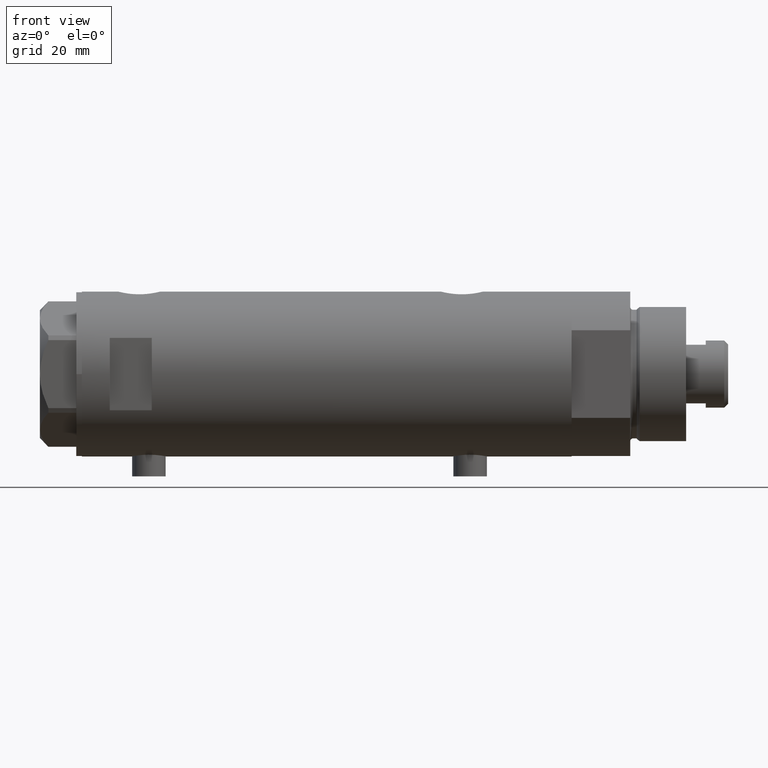
[diagram: clean part render]
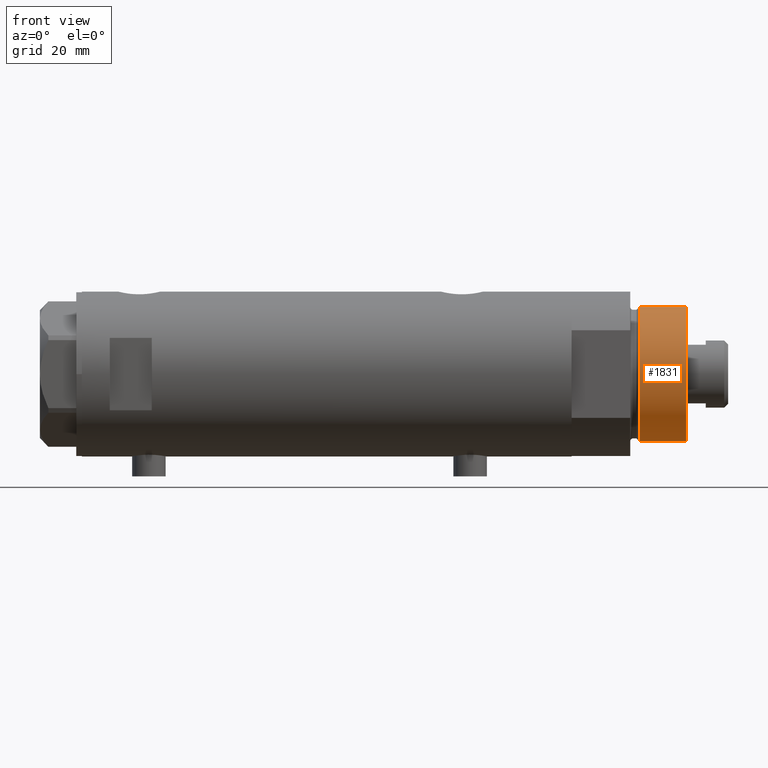
[diagram: same view with one face highlighted and labeled with its STEP entity id]
A machine part, front view. The second image highlights one B-rep face of the part: STEP entity #1831.
In plain terms, the highlighted cylindrical surface (partial cylindrical patch) has radius 24 mm, axis along (-1, -0, 0).
Its self-contained STEP definition (entity closure, byte-faithful):
#359 = EDGE_CURVE ( 'NONE', #992, #3082, #1311, .T. ) ;
#437 = ORIENTED_EDGE ( 'NONE', *, *, #1793, .F. ) ;
#447 = EDGE_CURVE ( 'NONE', #992, #1453, #1495, .T. ) ;
#886 = DIRECTION ( 'NONE',  ( -0.000000000000000000, -0.000000000000000000, -1.000000000000000000 ) ) ;
#956 = VERTEX_POINT ( 'NONE', #1099 ) ;
#992 = VERTEX_POINT ( 'NONE', #2160 ) ;
#1099 = CARTESIAN_POINT ( 'NONE',  ( 24.00000000000000355, 2.939152317953648289E-15, 24.37384048104054557 ) ) ;
#1178 = EDGE_LOOP ( 'NONE', ( #437, #4081, #1217, #2325 ) ) ;
#1180 = CARTESIAN_POINT ( 'NONE',  ( 24.00000000000000355, 2.939152317953648289E-15, 41.00000000000000000 ) ) ;
#1217 = ORIENTED_EDGE ( 'NONE', *, *, #359, .T. ) ;
#1221 = CARTESIAN_POINT ( 'NONE',  ( 0.000000000000000000, 0.000000000000000000, 41.00000000000000000 ) ) ;
#1311 = LINE ( 'NONE', #4023, #4305 ) ;
#1421 = FACE_OUTER_BOUND ( 'NONE', #1178, .T. ) ;
#1449 = LINE ( 'NONE', #1180, #2949 ) ;
#1453 = VERTEX_POINT ( 'NONE', #2882 ) ;
#1495 = CIRCLE ( 'NONE', #2059, 24.00000000000000355 ) ;
#1537 = CYLINDRICAL_SURFACE ( 'NONE', #4246, 24.00000000000000355 ) ;
#1648 = AXIS2_PLACEMENT_3D ( 'NONE', #2953, #4331, #3042 ) ;
#1654 = DIRECTION ( 'NONE',  ( 0.000000000000000000, 0.000000000000000000, 1.000000000000000000 ) ) ;
#1793 = EDGE_CURVE ( 'NONE', #1453, #956, #1449, .T. ) ;
#1831 = ADVANCED_FACE ( 'NONE', ( #1421 ), #1537, .T. ) ;
#2059 = AXIS2_PLACEMENT_3D ( 'NONE', #3011, #1654, #4387 ) ;
#2075 = CIRCLE ( 'NONE', #1648, 24.00000000000000355 ) ;
#2160 = CARTESIAN_POINT ( 'NONE',  ( -24.00000000000000355, 0.000000000000000000, 41.00000000000000000 ) ) ;
#2309 = DIRECTION ( 'NONE',  ( -0.000000000000000000, -0.000000000000000000, -1.000000000000000000 ) ) ;
#2325 = ORIENTED_EDGE ( 'NONE', *, *, #2367, .T. ) ;
#2367 = EDGE_CURVE ( 'NONE', #3082, #956, #2075, .T. ) ;
#2830 = DIRECTION ( 'NONE',  ( -1.000000000000000000, 0.000000000000000000, 0.000000000000000000 ) ) ;
#2882 = CARTESIAN_POINT ( 'NONE',  ( 24.00000000000000355, 2.939152317953648289E-15, 41.00000000000000000 ) ) ;
#2949 = VECTOR ( 'NONE', #3502, 1000.000000000000000 ) ;
#2953 = CARTESIAN_POINT ( 'NONE',  ( 0.000000000000000000, 0.000000000000000000, 24.37384048104054557 ) ) ;
#3011 = CARTESIAN_POINT ( 'NONE',  ( 0.000000000000000000, 0.000000000000000000, 41.00000000000000000 ) ) ;
#3042 = DIRECTION ( 'NONE',  ( 1.000000000000000000, 0.000000000000000000, 0.000000000000000000 ) ) ;
#3082 = VERTEX_POINT ( 'NONE', #4200 ) ;
#3502 = DIRECTION ( 'NONE',  ( -0.000000000000000000, -0.000000000000000000, -1.000000000000000000 ) ) ;
#4023 = CARTESIAN_POINT ( 'NONE',  ( -24.00000000000000355, 0.000000000000000000, 41.00000000000000000 ) ) ;
#4081 = ORIENTED_EDGE ( 'NONE', *, *, #447, .F. ) ;
#4200 = CARTESIAN_POINT ( 'NONE',  ( -24.00000000000000355, 0.000000000000000000, 24.37384048104054557 ) ) ;
#4246 = AXIS2_PLACEMENT_3D ( 'NONE', #1221, #886, #2830 ) ;
#4305 = VECTOR ( 'NONE', #2309, 1000.000000000000000 ) ;
#4331 = DIRECTION ( 'NONE',  ( -0.000000000000000000, -0.000000000000000000, 1.000000000000000000 ) ) ;
#4387 = DIRECTION ( 'NONE',  ( 1.000000000000000000, 0.000000000000000000, 0.000000000000000000 ) ) ;